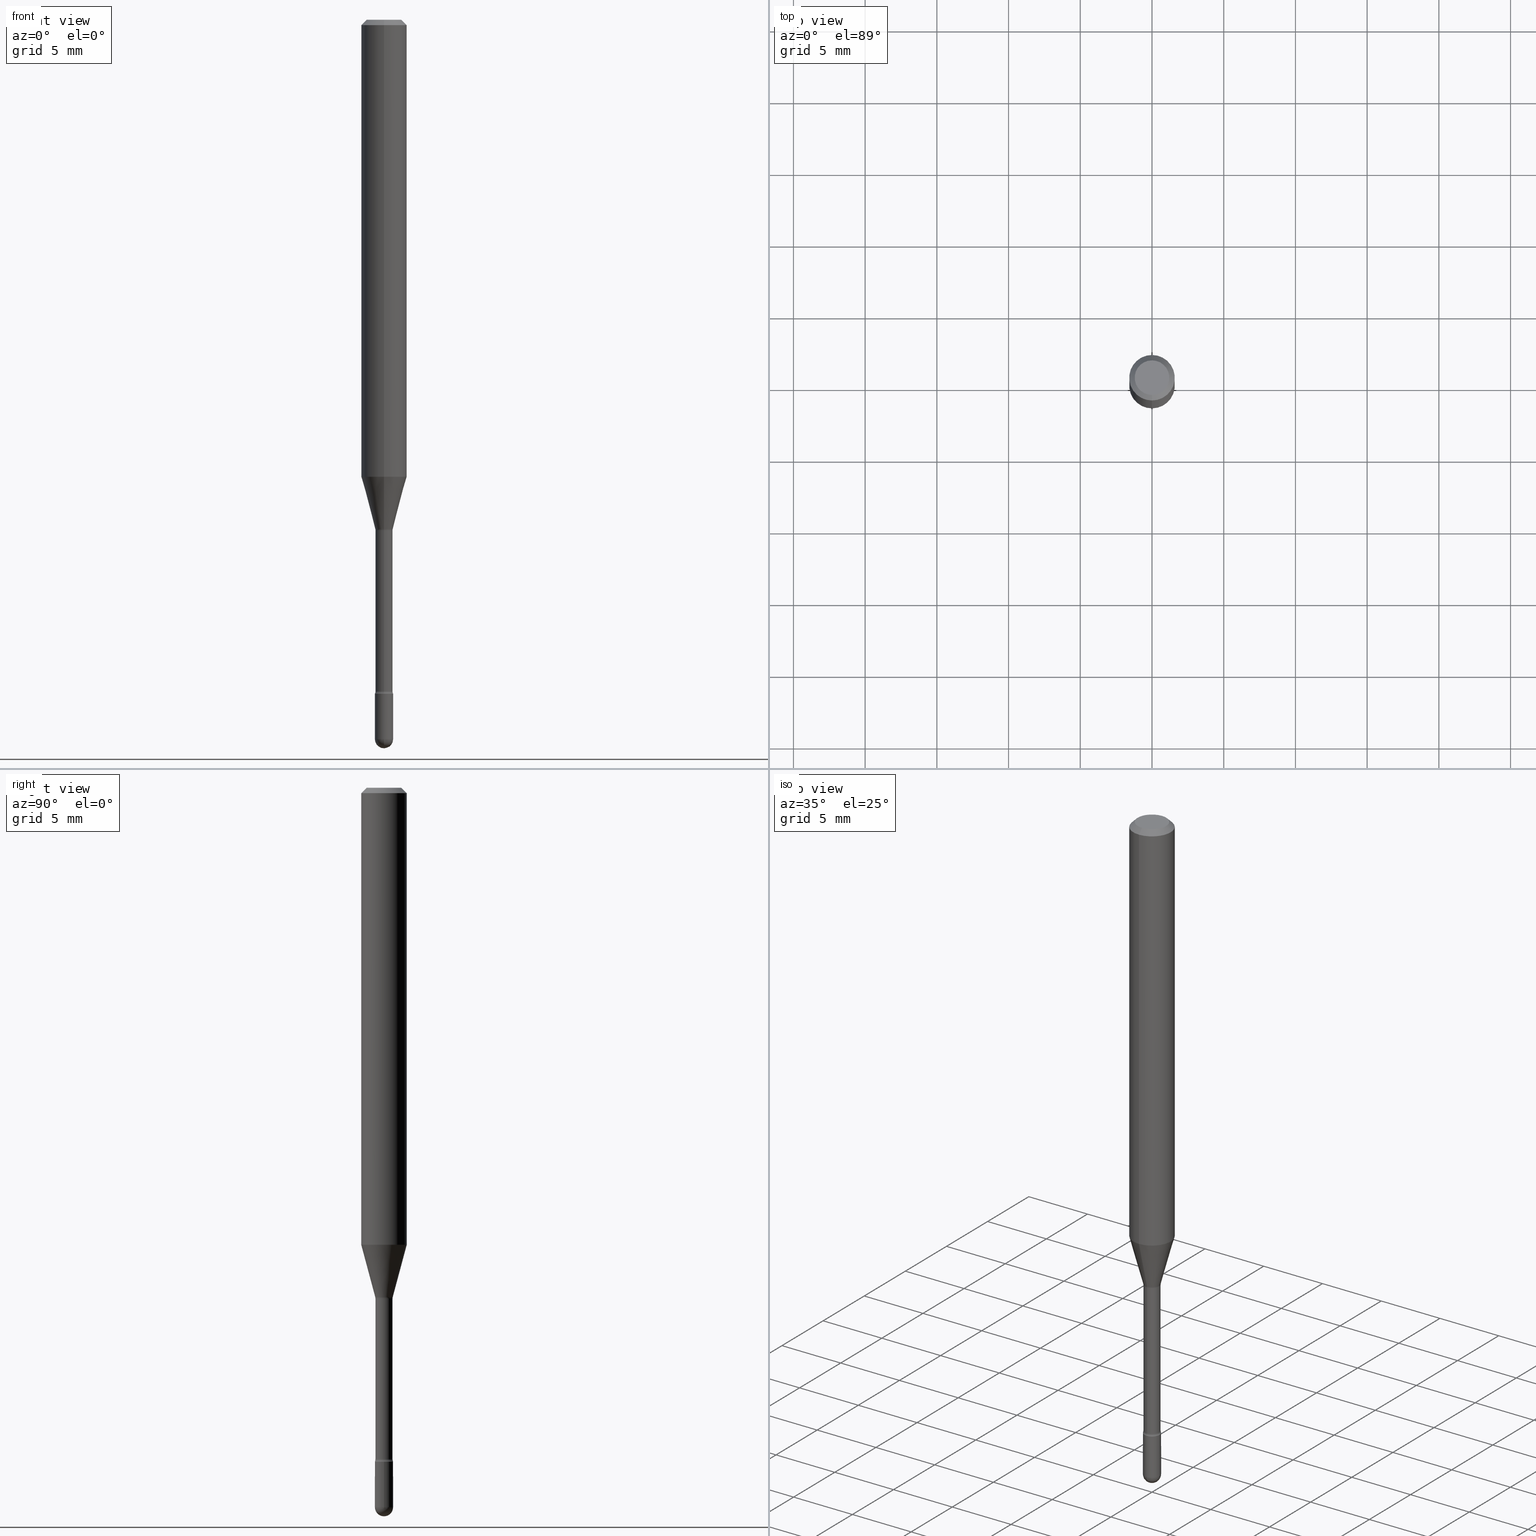
[diagram: canonical four-view strip — front | top / right | iso, engineering-drawing reading convention]
A machine part, canonical four-view strip (front | top / right | iso — engineering-drawing reading convention). The complete STEP part file that produces these views, byte-faithful:
ISO-10303-21;
HEADER;
FILE_DESCRIPTION (( 'STEP AP203' ),
    '1' );
FILE_NAME ('09318.STEP',
    '2024-04-09T22:26:42',
    ( '' ),
    ( '' ),
    'SwSTEP 2.0',
    'SolidWorks 2023',
    '' );
FILE_SCHEMA (( 'CONFIG_CONTROL_DESIGN' ));
ENDSEC;

DATA;
#1 = EDGE_CURVE ( 'NONE', #530, #293, #517, .T. ) ;
#2 = DIRECTION ( 'NONE',  ( 1.000000000000000000, -6.982962677686254878E-15, 0.000000000000000000 ) ) ;
#3 = CARTESIAN_POINT ( 'NONE',  ( -0.02500000000000000486, 1.776356839400250810E-16, -1.229733772563726656E-30 ) ) ;
#4 = EDGE_CURVE ( 'NONE', #227, #449, #503, .T. ) ;
#5 = DIRECTION ( 'NONE',  ( -2.445515165331157393E-29, 3.491414949907445282E-15, 1.000000000000000000 ) ) ;
#6 = CARTESIAN_POINT ( 'NONE',  ( 0.000000000000000000, 0.000000000000000000, 0.000000000000000000 ) ) ;
#7 = DIRECTION ( 'NONE',  ( -2.445515165331157393E-29, 3.491414949907445282E-15, 1.000000000000000000 ) ) ;
#8 = ORIENTED_EDGE ( 'NONE', *, *, #424, .F. ) ;
#9 = CARTESIAN_POINT ( 'NONE',  ( 2.735589532676728342E-16, 0.03849999999999511452, -1.401974787463811101 ) ) ;
#10 = LINE ( 'NONE', #3, #28 ) ;
#11 = ADVANCED_FACE ( 'NONE', ( #17 ), #188, .T. ) ;
#12 = DIRECTION ( 'NONE',  ( -2.445515165331157393E-29, 3.491414949907445282E-15, 1.000000000000000000 ) ) ;
#13 = ADVANCED_FACE ( 'NONE', ( #434 ), #301, .T. ) ;
#14 = EDGE_LOOP ( 'NONE', ( #411, #369, #456, #69 ) ) ;
#15 = DIRECTION ( 'NONE',  ( -6.982962677686265133E-15, -1.000000000000000000, 0.000000000000000000 ) ) ;
#16 = AXIS2_PLACEMENT_3D ( 'NONE', #351, #48, #305 ) ;
#17 = FACE_OUTER_BOUND ( 'NONE', #251, .T. ) ;
#18 = LINE ( 'NONE', #96, #38 ) ;
#19 = LINE ( 'NONE', #102, #176 ) ;
#20 = ORIENTED_EDGE ( 'NONE', *, *, #340, .T. ) ;
#21 = VERTEX_POINT ( 'NONE', #392 ) ;
#22 = PERSON_AND_ORGANIZATION ( #67, #127 ) ;
#23 = CARTESIAN_POINT ( 'NONE',  ( 4.508213425656779262E-29, -6.436289569923853216E-15, -1.843461651584689109 ) ) ;
#24 = EDGE_LOOP ( 'NONE', ( #359, #112, #499, #128 ) ) ;
#25 = EDGE_CURVE ( 'NONE', #219, #252, #10, .T. ) ;
#26 = DIRECTION ( 'NONE',  ( -2.445515165331157393E-29, 3.491414949907445282E-15, 1.000000000000000000 ) ) ;
#27 = UNCERTAINTY_MEASURE_WITH_UNIT (LENGTH_MEASURE( 1.000000000000000082E-05 ), #111, 'distance_accuracy_value', 'NONE');
#28 = VECTOR ( 'NONE', #83, 39.37007874015748143 ) ;
#29 = AXIS2_PLACEMENT_3D ( 'NONE', #455, #545, #257 ) ;
#30 = DIRECTION ( 'NONE',  ( -2.445515165331157393E-29, 3.491414949907444887E-15, 1.000000000000000000 ) ) ;
#31 = DIRECTION ( 'NONE',  ( 1.839019923739601104E-15, 0.2588190451025250693, 0.9659258262890670910 ) ) ;
#32 = PRODUCT_RELATED_PRODUCT_CATEGORY ( 'detail', '', ( #323 ) ) ;
#33 = CARTESIAN_POINT ( 'NONE',  ( 4.829800892215644891E-29, -6.895675644215213620E-15, -1.975000000000000089 ) ) ;
#34 = ADVANCED_FACE ( 'NONE', ( #132 ), #390, .T. ) ;
#35 = CARTESIAN_POINT ( 'NONE',  ( 1.745740669422019040E-16, 0.02499999999999354475, -1.849999999999999867 ) ) ;
#36 = SECURITY_CLASSIFICATION_LEVEL ( 'unclassified' ) ;
#37 = DIRECTION ( 'NONE',  ( -2.445515165331157393E-29, 3.491414949907445282E-15, 1.000000000000000000 ) ) ;
#38 = VECTOR ( 'NONE', #537, 39.37007874015748143 ) ;
#39 = ORIENTED_EDGE ( 'NONE', *, *, #292, .F. ) ;
#40 = DIRECTION ( 'NONE',  ( -6.982962677686265922E-15, -1.000000000000000000, 3.491414949907445676E-15 ) ) ;
#41 = FACE_OUTER_BOUND ( 'NONE', #249, .T. ) ;
#42 = APPROVAL_DATE_TIME ( #386, #529 ) ;
#43 = CARTESIAN_POINT ( 'NONE',  ( 3.668272747996756163E-31, -5.237122424861196839E-17, -0.01500000000000008271 ) ) ;
#44 = DIRECTION ( 'NONE',  ( -2.445515165331157113E-29, 3.491414949907444887E-15, 1.000000000000000000 ) ) ;
#45 = DIRECTION ( 'NONE',  ( -2.445515165331157393E-29, 3.491414949907445282E-15, 1.000000000000000000 ) ) ;
#46 = CARTESIAN_POINT ( 'NONE',  ( 0.02500000000000000486, -1.745740669421567171E-16, 1.219044193948984299E-30 ) ) ;
#47 = CIRCLE ( 'NONE', #57, 0.02500000000000000486 ) ;
#48 = DIRECTION ( 'NONE',  ( -2.445515165331157393E-29, 3.491414949907445282E-15, 1.000000000000000000 ) ) ;
#49 = AXIS2_PLACEMENT_3D ( 'NONE', #23, #505, #543 ) ;
#50 = CARTESIAN_POINT ( 'NONE',  ( 3.428550604154676765E-29, -4.894875732344463404E-15, -1.401974787463811101 ) ) ;
#51 = ORIENTED_EDGE ( 'NONE', *, *, #506, .T. ) ;
#52 = DIRECTION ( 'NONE',  ( -2.445468806185136597E-29, 3.491481338843145583E-15, 1.000000000000000000 ) ) ;
#53 = ORIENTED_EDGE ( 'NONE', *, *, #334, .F. ) ;
#54 = EDGE_LOOP ( 'NONE', ( #395, #59 ) ) ;
#55 = CARTESIAN_POINT ( 'NONE',  ( 2.735589532676839768E-16, 0.03849999999999361572, -1.843461651584689109 ) ) ;
#56 = CARTESIAN_POINT ( 'NONE',  ( -1.776356839399765414E-16, -0.02500000000000686742, -1.975000000000000089 ) ) ;
#57 = AXIS2_PLACEMENT_3D ( 'NONE', #535, #228, #140 ) ;
#58 = AXIS2_PLACEMENT_3D ( 'NONE', #290, #26, #465 ) ;
#59 = ORIENTED_EDGE ( 'NONE', *, *, #424, .T. ) ;
#60 = ADVANCED_FACE ( 'NONE', ( #546 ), #336, .F. ) ;
#61 = CARTESIAN_POINT ( 'NONE',  ( 4.440892098500930859E-16, 0.06249999999999559380, -1.254450018504814635 ) ) ;
#62 = ORIENTED_EDGE ( 'NONE', *, *, #463, .T. ) ;
#63 = ORIENTED_EDGE ( 'NONE', *, *, #500, .T. ) ;
#64 = DIRECTION ( 'NONE',  ( -4.851104656540964275E-15, -0.7071067811865500152, -0.7071067811865450192 ) ) ;
#65 = ORIENTED_EDGE ( 'NONE', *, *, #380, .F. ) ;
#66 = DIRECTION ( 'NONE',  ( 1.000000000000000000, 0.000000000000000000, 0.000000000000000000 ) ) ;
#67 = PERSON ( 'UNSPECIFIED', 'UNSPECIFIED', 'UNSPECIFIED', ('UNSPECIFIED'), ('UNSPECIFIED'), ('UNSPECIFIED') ) ;
#68 = VECTOR ( 'NONE', #81, 39.37007874015748143 ) ;
#69 = ORIENTED_EDGE ( 'NONE', *, *, #299, .T. ) ;
#70 = ORIENTED_EDGE ( 'NONE', *, *, #25, .F. ) ;
#71 = VERTEX_POINT ( 'NONE', #197 ) ;
#72 = APPLICATION_CONTEXT ( 'configuration controlled 3d designs of mechanical parts and assemblies' ) ;
#73 = DIRECTION ( 'NONE',  ( 2.445515165331157393E-29, -3.491414949907445282E-15, -1.000000000000000000 ) ) ;
#74 = AXIS2_PLACEMENT_3D ( 'NONE', #175, #429, #276 ) ;
#75 = CIRCLE ( 'NONE', #139, 0.02500000000000000139 ) ;
#76 = ADVANCED_FACE ( 'NONE', ( #425 ), #267, .F. ) ;
#77 = EDGE_CURVE ( 'NONE', #401, #114, #522, .T. ) ;
#78 = EDGE_LOOP ( 'NONE', ( #306, #170, #539, #461 ) ) ;
#79 = CALENDAR_DATE ( 2024, 9, 4 ) ;
#80 = SPHERICAL_SURFACE ( 'NONE', #272, 0.02499999999999993894 ) ;
#81 = DIRECTION ( 'NONE',  ( -2.445515165331157393E-29, 3.491414949907444887E-15, 1.000000000000000000 ) ) ;
#82 = AXIS2_PLACEMENT_3D ( 'NONE', #145, #322, #482 ) ;
#83 = DIRECTION ( 'NONE',  ( -2.445468806185136877E-29, 3.491481338843145188E-15, 1.000000000000000000 ) ) ;
#84 = AXIS2_PLACEMENT_3D ( 'NONE', #55, #237, #240 ) ;
#85 = AXIS2_PLACEMENT_3D ( 'NONE', #115, #164, #254 ) ;
#86 = VERTEX_POINT ( 'NONE', #131 ) ;
#87 = APPROVAL_DATE_TIME ( #559, #106 ) ;
#88 = DIRECTION ( 'NONE',  ( -2.445515165331157393E-29, 3.491414949907444887E-15, 1.000000000000000000 ) ) ;
#89 = EDGE_CURVE ( 'NONE', #444, #135, #231, .T. ) ;
#90 = ORIENTED_EDGE ( 'NONE', *, *, #213, .F. ) ;
#91 = CARTESIAN_POINT ( 'NONE',  ( 4.829800892215644891E-29, -6.895675644215213620E-15, -1.975000000000000089 ) ) ;
#92 = PERSON_AND_ORGANIZATION ( #67, #127 ) ;
#93 = EDGE_CURVE ( 'NONE', #159, #449, #388, .T. ) ;
#94 = FACE_OUTER_BOUND ( 'NONE', #484, .T. ) ;
#95 = AXIS2_PLACEMENT_3D ( 'NONE', #266, #520, #376 ) ;
#96 = CARTESIAN_POINT ( 'NONE',  ( -1.676687031750395996E-16, -0.02401111260566886341, -1.398092501787273179 ) ) ;
#97 = ORIENTED_EDGE ( 'NONE', *, *, #108, .T. ) ;
#98 = DIRECTION ( 'NONE',  ( -6.982962677686266711E-15, -1.000000000000000000, 0.000000000000000000 ) ) ;
#99 = CARTESIAN_POINT ( 'NONE',  ( -2.688440630908869963E-16, -0.03850000000000489836, -1.401974787463811101 ) ) ;
#100 = EDGE_CURVE ( 'NONE', #368, #159, #190, .T. ) ;
#101 = CLOSED_SHELL ( 'NONE', ( #34, #250, #286, #143, #451 ) ) ;
#102 = CARTESIAN_POINT ( 'NONE',  ( 4.364351673553919652E-16, 0.06249999999999995143, -0.01500000000000030129 ) ) ;
#103 = AXIS2_PLACEMENT_3D ( 'NONE', #248, #333, #291 ) ;
#104 = ORIENTED_EDGE ( 'NONE', *, *, #556, .T. ) ;
#105 = CARTESIAN_POINT ( 'NONE',  ( 4.524117291442502256E-29, -6.459240476859818795E-15, -1.849999999999999867 ) ) ;
#106 = APPROVAL ( #259, 'UNSPECIFIED' ) ;
#107 = DIRECTION ( 'NONE',  ( 0.000000000000000000, 0.000000000000000000, 1.000000000000000000 ) ) ;
#108 = EDGE_CURVE ( 'NONE', #449, #159, #432, .T. ) ;
#109 = PERSON_AND_ORGANIZATION ( #67, #127 ) ;
#110 = SECURITY_CLASSIFICATION ( '', '', #36 ) ;
#111 =( CONVERSION_BASED_UNIT ( 'INCH', #339 ) LENGTH_UNIT ( ) NAMED_UNIT ( #363 ) );
#112 = ORIENTED_EDGE ( 'NONE', *, *, #442, .T. ) ;
#113 = CARTESIAN_POINT ( 'NONE',  ( 3.668272747996756163E-31, -5.237122424861196839E-17, -0.01500000000000008271 ) ) ;
#114 = VERTEX_POINT ( 'NONE', #187 ) ;
#115 = CARTESIAN_POINT ( 'NONE',  ( 3.419056415656554826E-29, -4.881321062093587157E-15, -1.398092501787273179 ) ) ;
#116 = AXIS2_PLACEMENT_3D ( 'NONE', #50, #528, #235 ) ;
#117 = ADVANCED_FACE ( 'NONE', ( #538 ), #509, .T. ) ;
#118 = AXIS2_PLACEMENT_3D ( 'NONE', #439, #194, #498 ) ;
#119 = CARTESIAN_POINT ( 'NONE',  ( 3.668272747996756163E-31, -5.237122424861196839E-17, -0.01500000000000008271 ) ) ;
#120 = APPROVAL_ROLE ( '' ) ;
#121 = ADVANCED_FACE ( 'NONE', ( #123 ), #156, .T. ) ;
#122 = DIRECTION ( 'NONE',  ( -6.982962677686265922E-15, -1.000000000000000000, 4.370956789862821150E-15 ) ) ;
#123 = FACE_OUTER_BOUND ( 'NONE', #283, .T. ) ;
#124 = ORIENTED_EDGE ( 'NONE', *, *, #500, .F. ) ;
#125 = CARTESIAN_POINT ( 'NONE',  ( 3.067776544403474457E-29, -4.379805548519381130E-15, -1.254450018504814413 ) ) ;
#126 = CIRCLE ( 'NONE', #533, 0.04749999999999999362 ) ;
#127 = ORGANIZATION ( 'UNSPECIFIED', 'UNSPECIFIED', '' ) ;
#128 = ORIENTED_EDGE ( 'NONE', *, *, #367, .F. ) ;
#129 = APPROVAL_ROLE ( '' ) ;
#130 = CARTESIAN_POINT ( 'NONE',  ( -0.02500000000000000486, -6.499822376597491792E-15, -1.975000000000000089 ) ) ;
#131 = CARTESIAN_POINT ( 'NONE',  ( -4.364351673553610517E-16, -0.06250000000000439926, -1.254450018504814190 ) ) ;
#132 = FACE_OUTER_BOUND ( 'NONE', #496, .T. ) ;
#133 = COORDINATED_UNIVERSAL_TIME_OFFSET ( 5, 0, .BEHIND. ) ;
#134 = DIRECTION ( 'NONE',  ( 2.445515165331157393E-29, -3.491414949907445282E-15, -1.000000000000000000 ) ) ;
#135 = VERTEX_POINT ( 'NONE', #260 ) ;
#136 = PLANE ( 'NONE',  #222 ) ;
#137 = DIRECTION ( 'NONE',  ( -2.445515165331157393E-29, 3.491414949907445282E-15, 1.000000000000000000 ) ) ;
#138 = ORIENTED_EDGE ( 'NONE', *, *, #181, .F. ) ;
#139 = AXIS2_PLACEMENT_3D ( 'NONE', #105, #277, #284 ) ;
#140 = DIRECTION ( 'NONE',  ( 1.000000000000000000, -6.982962677686253300E-15, 0.000000000000000000 ) ) ;
#141 = CARTESIAN_POINT ( 'NONE',  ( 4.508213425656779262E-29, -6.436289569923853216E-15, -1.843461651584689109 ) ) ;
#142 = PRODUCT_DEFINITION_SHAPE ( 'NONE', 'NONE',  #379 ) ;
#143 = ADVANCED_FACE ( 'NONE', ( #94 ), #418, .T. ) ;
#144 = FACE_OUTER_BOUND ( 'NONE', #24, .T. ) ;
#145 = CARTESIAN_POINT ( 'NONE',  ( 3.428485609800787057E-29, -4.894968807958481776E-15, -1.401974787463811101 ) ) ;
#146 = DIRECTION ( 'NONE',  ( 2.445515165331157113E-29, -3.491414949907444887E-15, -1.000000000000000000 ) ) ;
#147 = AXIS2_PLACEMENT_3D ( 'NONE', #91, #352, #381 ) ;
#148 = ORIENTED_EDGE ( 'NONE', *, *, #420, .F. ) ;
#149 = CC_DESIGN_PERSON_AND_ORGANIZATION_ASSIGNMENT ( #210, #512, ( #342 ) ) ;
#150 = ORIENTED_EDGE ( 'NONE', *, *, #463, .F. ) ;
#151 =( NAMED_UNIT ( * ) SI_UNIT ( $, .STERADIAN. ) SOLID_ANGLE_UNIT ( ) );
#152 = EDGE_CURVE ( 'NONE', #21, #436, #466, .T. ) ;
#153 = ORIENTED_EDGE ( 'NONE', *, *, #340, .F. ) ;
#154 = CARTESIAN_POINT ( 'NONE',  ( -1.169113584055446105E-44, 1.669184350826100908E-30, 4.780733988912460139E-16 ) ) ;
#155 = FACE_OUTER_BOUND ( 'NONE', #394, .T. ) ;
#156 = CYLINDRICAL_SURFACE ( 'NONE', #244, 0.02350000000000003475 ) ;
#157 = DIRECTION ( 'NONE',  ( 6.982962677686265922E-15, 1.000000000000000000, 0.000000000000000000 ) ) ;
#158 = VECTOR ( 'NONE', #393, 39.37007874015748143 ) ;
#159 = VERTEX_POINT ( 'NONE', #303 ) ;
#160 = CONICAL_SURFACE ( 'NONE', #328, 0.02401111260566398189, 0.2617993877991502960 ) ;
#161 = LOCAL_TIME ( 18, 26, 42.00000000000000000, #211 ) ;
#162 = FACE_OUTER_BOUND ( 'NONE', #448, .T. ) ;
#163 = ADVANCED_FACE ( 'NONE', ( #271 ), #383, .T. ) ;
#164 = DIRECTION ( 'NONE',  ( -2.445515165331157393E-29, 3.491414949907445282E-15, 1.000000000000000000 ) ) ;
#165 = AXIS2_PLACEMENT_3D ( 'NONE', #99, #191, #396 ) ;
#166 = ORIENTED_EDGE ( 'NONE', *, *, #77, .F. ) ;
#167 = PERSON_AND_ORGANIZATION ( #67, #127 ) ;
#168 = DIRECTION ( 'NONE',  ( -2.445515165331157393E-29, 3.491414949907445282E-15, 1.000000000000000000 ) ) ;
#169 = DIRECTION ( 'NONE',  ( 1.000000000000000000, -6.982962677686267499E-15, 4.876176775795936353E-29 ) ) ;
#170 = ORIENTED_EDGE ( 'NONE', *, *, #544, .F. ) ;
#171 = EDGE_LOOP ( 'NONE', ( #70, #51, #360, #178, #247 ) ) ;
#172 = CARTESIAN_POINT ( 'NONE',  ( 4.829800892215644891E-29, -6.895675644215213620E-15, -1.975000000000000089 ) ) ;
#173 = CALENDAR_DATE ( 2024, 9, 4 ) ;
#174 = FACE_OUTER_BOUND ( 'NONE', #287, .T. ) ;
#175 = CARTESIAN_POINT ( 'NONE',  ( -1.169113584055446105E-44, 1.669184350826100908E-30, 4.780733988912460139E-16 ) ) ;
#176 = VECTOR ( 'NONE', #282, 39.37007874015748143 ) ;
#177 = MANIFOLD_SOLID_BREP ( 'Body-Move/Copy2[2]', #348 ) ;
#178 = ORIENTED_EDGE ( 'NONE', *, *, #89, .T. ) ;
#179 = APPROVAL_STATUS ( 'not_yet_approved' ) ;
#180 = DIRECTION ( 'NONE',  ( -6.982962677686265922E-15, -1.000000000000000000, 3.491414949907445676E-15 ) ) ;
#181 = EDGE_CURVE ( 'NONE', #86, #401, #302, .T. ) ;
#182 = CARTESIAN_POINT ( 'NONE',  ( 1.669775429036687557E-16, 0.02349999999999509773, -1.401974787463811101 ) ) ;
#183 = AXIS2_PLACEMENT_3D ( 'NONE', #230, #52, #492 ) ;
#184 = ADVANCED_FACE ( 'NONE', ( #479 ), #457, .F. ) ;
#185 = CIRCLE ( 'NONE', #49, 0.02350000000000007291 ) ;
#186 = DIRECTION ( 'NONE',  ( -2.445468806185136597E-29, 3.491481338843145583E-15, 1.000000000000000000 ) ) ;
#187 = CARTESIAN_POINT ( 'NONE',  ( 4.440892098500934804E-16, 0.06249999999999995143, -0.01500000000000030129 ) ) ;
#188 = CYLINDRICAL_SURFACE ( 'NONE', #74, 0.02350000000000003475 ) ;
#189 = EDGE_CURVE ( 'NONE', #460, #114, #519, .T. ) ;
#190 = LINE ( 'NONE', #404, #158 ) ;
#191 = DIRECTION ( 'NONE',  ( -1.000000000000000000, 6.982962677686265922E-15, -4.883557194083112901E-29 ) ) ;
#192 = ORIENTED_EDGE ( 'NONE', *, *, #454, .T. ) ;
#193 = ORIENTED_EDGE ( 'NONE', *, *, #100, .F. ) ;
#194 = DIRECTION ( 'NONE',  ( -2.445515165331157393E-29, 3.491414949907445282E-15, 1.000000000000000000 ) ) ;
#195 = AXIS2_PLACEMENT_3D ( 'NONE', #154, #357, #40 ) ;
#196 = DIRECTION ( 'NONE',  ( -6.982962677686265922E-15, -1.000000000000000000, 3.491414949907444887E-15 ) ) ;
#197 = CARTESIAN_POINT ( 'NONE',  ( 1.723066134218696351E-16, 0.02349999999999363709, -1.843461651584689109 ) ) ;
#198 = AXIS2_PLACEMENT_3D ( 'NONE', #43, #7, #218 ) ;
#199 = EDGE_CURVE ( 'NONE', #401, #86, #511, .T. ) ;
#200 = LOCAL_TIME ( 18, 26, 42.00000000000000000, #480 ) ;
#201 = APPLICATION_PROTOCOL_DEFINITION ( 'international standard', 'config_control_design', 1994, #72 ) ;
#202 = ORIENTED_EDGE ( 'NONE', *, *, #199, .F. ) ;
#203 = VERTEX_POINT ( 'NONE', #270 ) ;
#204 = LINE ( 'NONE', #415, #521 ) ;
#205 = ORIENTED_EDGE ( 'NONE', *, *, #420, .T. ) ;
#206 =( NAMED_UNIT ( * ) PLANE_ANGLE_UNIT ( ) SI_UNIT ( $, .RADIAN. ) );
#207 = AXIS2_PLACEMENT_3D ( 'NONE', #113, #73, #547 ) ;
#208 = APPROVAL_PERSON_ORGANIZATION ( #92, #529, #120 ) ;
#209 = APPLICATION_CONTEXT ( 'configuration controlled 3d designs of mechanical parts and assemblies' ) ;
#210 = PERSON_AND_ORGANIZATION ( #67, #127 ) ;
#211 = COORDINATED_UNIVERSAL_TIME_OFFSET ( 5, 0, .BEHIND. ) ;
#212 = DIRECTION ( 'NONE',  ( -6.982962677686265922E-15, -1.000000000000000000, 3.491414949907445676E-15 ) ) ;
#213 = EDGE_CURVE ( 'NONE', #71, #449, #344, .T. ) ;
#214 = AXIS2_PLACEMENT_3D ( 'NONE', #428, #387, #2 ) ;
#215 = CIRCLE ( 'NONE', #234, 0.02500000000000000139 ) ;
#216 = ORIENTED_EDGE ( 'NONE', *, *, #199, .T. ) ;
#217 = ORIENTED_EDGE ( 'NONE', *, *, #556, .F. ) ;
#218 = DIRECTION ( 'NONE',  ( -6.982962677686265922E-15, -1.000000000000000000, 3.483106191921935554E-15 ) ) ;
#219 = VERTEX_POINT ( 'NONE', #130 ) ;
#220 = CALENDAR_DATE ( 2024, 9, 4 ) ;
#221 = CARTESIAN_POINT ( 'NONE',  ( 3.428485609800787057E-29, -4.894968807958481776E-15, -1.401974787463811101 ) ) ;
#222 = AXIS2_PLACEMENT_3D ( 'NONE', #326, #146, #329 ) ;
#223 = EDGE_CURVE ( 'NONE', #252, #135, #337, .T. ) ;
#224 = ORIENTED_EDGE ( 'NONE', *, *, #440, .T. ) ;
#225 = DIRECTION ( 'NONE',  ( -1.000000000000000000, 6.982962677686266711E-15, -4.883557194083112901E-29 ) ) ;
#226 = ORIENTED_EDGE ( 'NONE', *, *, #181, .T. ) ;
#227 = VERTEX_POINT ( 'NONE', #471 ) ;
#228 = DIRECTION ( 'NONE',  ( -2.445468806185136597E-29, 3.491481338843145583E-15, 1.000000000000000000 ) ) ;
#229 = EDGE_CURVE ( 'NONE', #478, #238, #126, .T. ) ;
#230 = CARTESIAN_POINT ( 'NONE',  ( 0.000000000000000000, 0.000000000000000000, 0.000000000000000000 ) ) ;
#231 = LINE ( 'NONE', #46, #398 ) ;
#232 = DIRECTION ( 'NONE',  ( -6.982962677686265922E-15, -1.000000000000000000, 0.000000000000000000 ) ) ;
#233 = AXIS2_PLACEMENT_3D ( 'NONE', #327, #137, #232 ) ;
#234 = AXIS2_PLACEMENT_3D ( 'NONE', #242, #527, #441 ) ;
#235 = DIRECTION ( 'NONE',  ( -6.982962677686265922E-15, -1.000000000000000000, 0.000000000000000000 ) ) ;
#236 = AXIS2_PLACEMENT_3D ( 'NONE', #33, #370, #157 ) ;
#237 = DIRECTION ( 'NONE',  ( 1.000000000000000000, -7.105427357601001070E-15, 4.926314695512106152E-29 ) ) ;
#238 = VERTEX_POINT ( 'NONE', #422 ) ;
#239 = CC_DESIGN_DATE_AND_TIME_ASSIGNMENT ( #350, #417, ( #379 ) ) ;
#240 = DIRECTION ( 'NONE',  ( 7.105427357600997914E-15, 1.000000000000000000, 0.000000000000000000 ) ) ;
#241 = EDGE_LOOP ( 'NONE', ( #124, #295, #97, #245 ) ) ;
#242 = CARTESIAN_POINT ( 'NONE',  ( 4.524203055862640939E-29, -6.459117657328772962E-15, -1.849999999999999867 ) ) ;
#243 = ORIENTED_EDGE ( 'NONE', *, *, #544, .T. ) ;
#244 = AXIS2_PLACEMENT_3D ( 'NONE', #403, #562, #347 ) ;
#245 = ORIENTED_EDGE ( 'NONE', *, *, #382, .F. ) ;
#246 = ORIENTED_EDGE ( 'NONE', *, *, #435, .F. ) ;
#247 = ORIENTED_EDGE ( 'NONE', *, *, #223, .F. ) ;
#248 = CARTESIAN_POINT ( 'NONE',  ( 3.419056415656554826E-29, -4.881321062093587157E-15, -1.398092501787273179 ) ) ;
#249 = EDGE_LOOP ( 'NONE', ( #217, #274, #419, #153 ) ) ;
#250 = ADVANCED_FACE ( 'NONE', ( #41 ), #80, .T. ) ;
#251 = EDGE_LOOP ( 'NONE', ( #224, #258, #385, #193 ) ) ;
#252 = VERTEX_POINT ( 'NONE', #315 ) ;
#253 =( LENGTH_UNIT ( ) NAMED_UNIT ( * ) SI_UNIT ( $, .METRE. ) );
#254 = DIRECTION ( 'NONE',  ( -6.982962677686265133E-15, -1.000000000000000000, 0.000000000000000000 ) ) ;
#255 = AXIS2_PLACEMENT_3D ( 'NONE', #516, #481, #308 ) ;
#256 = LOCAL_TIME ( 18, 26, 42.00000000000000000, #312 ) ;
#257 = DIRECTION ( 'NONE',  ( -6.982962677686265922E-15, -1.000000000000000000, 3.491414949907444887E-15 ) ) ;
#258 = ORIENTED_EDGE ( 'NONE', *, *, #213, .T. ) ;
#259 = APPROVAL_STATUS ( 'not_yet_approved' ) ;
#260 = CARTESIAN_POINT ( 'NONE',  ( 0.02500000000000000139, -6.633814543801975463E-15, -1.849999999999999867 ) ) ;
#261 = CARTESIAN_POINT ( 'NONE',  ( 2.023889967611963003E-45, -2.888834961387493814E-31, -8.275018554599114766E-17 ) ) ;
#262 = AXIS2_PLACEMENT_3D ( 'NONE', #489, #134, #316 ) ;
#263 = AXIS2_PLACEMENT_3D ( 'NONE', #119, #168, #431 ) ;
#264 = CC_DESIGN_PERSON_AND_ORGANIZATION_ASSIGNMENT ( #514, #470, ( #342 ) ) ;
#265 = CALENDAR_DATE ( 2024, 9, 4 ) ;
#266 = CARTESIAN_POINT ( 'NONE',  ( 4.829800892215644891E-29, -6.895675644215213620E-15, -1.975000000000000089 ) ) ;
#267 = PLANE ( 'NONE',  #413 ) ;
#268 = ORIENTED_EDGE ( 'NONE', *, *, #152, .F. ) ;
#269 = DATE_AND_TIME ( #173, #256 ) ;
#270 = CARTESIAN_POINT ( 'NONE',  ( -1.676687031750395996E-16, -0.02401111260566886341, -1.398092501787273179 ) ) ;
#271 = FACE_OUTER_BOUND ( 'NONE', #373, .T. ) ;
#272 = AXIS2_PLACEMENT_3D ( 'NONE', #172, #225, #524 ) ;
#273 = CC_DESIGN_APPROVAL ( #529, ( #110 ) ) ;
#274 = ORIENTED_EDGE ( 'NONE', *, *, #152, .T. ) ;
#275 = CARTESIAN_POINT ( 'NONE',  ( -1.640996229255826813E-16, -0.02350000000000651221, -1.843461651584689109 ) ) ;
#276 = DIRECTION ( 'NONE',  ( -6.982962677686267499E-15, -1.000000000000000000, 3.491414949907446070E-15 ) ) ;
#277 = DIRECTION ( 'NONE',  ( -2.445468806185136597E-29, 3.491481338843145583E-15, 1.000000000000000000 ) ) ;
#278 = ORIENTED_EDGE ( 'NONE', *, *, #189, .F. ) ;
#279 = CARTESIAN_POINT ( 'NONE',  ( -4.287811248607203282E-16, -0.06250000000000005551, -0.01499999999999986587 ) ) ;
#280 = ORIENTED_EDGE ( 'NONE', *, *, #1, .F. ) ;
#281 = TOROIDAL_SURFACE ( 'NONE', #29, 0.03850000000000005501, 0.01499999999999998036 ) ;
#282 = DIRECTION ( 'NONE',  ( 4.937700262164548042E-15, 0.7071067811865451302, -0.7071067811865499042 ) ) ;
#283 = EDGE_LOOP ( 'NONE', ( #90, #409, #371, #332 ) ) ;
#284 = DIRECTION ( 'NONE',  ( 1.000000000000000000, -6.982962677686254878E-15, 0.000000000000000000 ) ) ;
#285 = ORIENTED_EDGE ( 'NONE', *, *, #25, .T. ) ;
#286 = ADVANCED_FACE ( 'NONE', ( #564 ), #345, .T. ) ;
#287 = EDGE_LOOP ( 'NONE', ( #536, #63, #507, #202 ) ) ;
#288 = FACE_OUTER_BOUND ( 'NONE', #501, .T. ) ;
#289 = TOROIDAL_SURFACE ( 'NONE', #364, 0.03850000000000005501, 0.01499999999999998036 ) ;
#290 = CARTESIAN_POINT ( 'NONE',  ( 3.419056415656554826E-29, -4.881321062093587157E-15, -1.398092501787273179 ) ) ;
#291 = DIRECTION ( 'NONE',  ( -6.982962677686265133E-15, -1.000000000000000000, 0.000000000000000000 ) ) ;
#292 = EDGE_CURVE ( 'NONE', #86, #460, #391, .T. ) ;
#293 = VERTEX_POINT ( 'NONE', #427 ) ;
#294 = MANIFOLD_SOLID_BREP ( 'Body-Move/Copy2[1]', #101 ) ;
#295 = ORIENTED_EDGE ( 'NONE', *, *, #4, .T. ) ;
#296 = MECHANICAL_CONTEXT ( 'NONE', #209, 'mechanical' ) ;
#297 = ORIENTED_EDGE ( 'NONE', *, *, #367, .T. ) ;
#298 = DESIGN_CONTEXT ( 'detailed design', #72, 'design' ) ;
#299 = EDGE_CURVE ( 'NONE', #114, #460, #443, .T. ) ;
#300 = DIRECTION ( 'NONE',  ( -2.445468806185136597E-29, 3.491481338843145583E-15, 1.000000000000000000 ) ) ;
#301 = CONICAL_SURFACE ( 'NONE', #262, 0.06250000000000000000, 0.7853981633974483900 ) ;
#302 = CIRCLE ( 'NONE', #309, 0.06250000000000000000 ) ;
#303 = CARTESIAN_POINT ( 'NONE',  ( -1.640996229255929365E-16, -0.02350000000000488851, -1.401974787463811101 ) ) ;
#304 = SHAPE_DEFINITION_REPRESENTATION ( #142, #311 ) ;
#305 = DIRECTION ( 'NONE',  ( -6.982962677686265922E-15, -1.000000000000000000, 4.370956789862821150E-15 ) ) ;
#306 = ORIENTED_EDGE ( 'NONE', *, *, #4, .F. ) ;
#307 = APPROVAL_STATUS ( 'not_yet_approved' ) ;
#308 = DIRECTION ( 'NONE',  ( 1.000000000000000000, -6.982962677686265922E-15, 4.876176775795935793E-29 ) ) ;
#309 = AXIS2_PLACEMENT_3D ( 'NONE', #125, #560, #122 ) ;
#310 = AXIS2_PLACEMENT_3D ( 'NONE', #502, #107, #66 ) ;
#311 = ADVANCED_BREP_SHAPE_REPRESENTATION ( '09318', ( #294, #177, #310 ), #513 ) ;
#312 = COORDINATED_UNIVERSAL_TIME_OFFSET ( 5, 0, .BEHIND. ) ;
#313 = CARTESIAN_POINT ( 'NONE',  ( -1.169113584055446105E-44, 1.669184350826100908E-30, 4.780733988912460139E-16 ) ) ;
#314 = PERSON_AND_ORGANIZATION_ROLE ( 'classification_officer' ) ;
#315 = CARTESIAN_POINT ( 'NONE',  ( -0.02500000000000000139, -6.499822376597491792E-15, -1.849999999999999867 ) ) ;
#316 = DIRECTION ( 'NONE',  ( 6.982962677686265922E-15, 1.000000000000000000, -3.483106191921935554E-15 ) ) ;
#317 = DIRECTION ( 'NONE',  ( -6.982962677686265133E-15, -1.000000000000000000, 0.000000000000000000 ) ) ;
#318 = CARTESIAN_POINT ( 'NONE',  ( 4.829800892215644891E-29, -6.895675644215213620E-15, -1.975000000000000089 ) ) ;
#319 = CIRCLE ( 'NONE', #407, 0.02500000000000000486 ) ;
#320 = ADVANCED_FACE ( 'NONE', ( #174 ), #160, .T. ) ;
#321 = DIRECTION ( 'NONE',  ( -2.445468806185136597E-29, 3.491481338843145583E-15, 1.000000000000000000 ) ) ;
#322 = DIRECTION ( 'NONE',  ( -2.445515165331157393E-29, 3.491414949907445282E-15, 1.000000000000000000 ) ) ;
#323 = PRODUCT ( '09318', '09318', '', ( #296 ) ) ;
#324 = VERTEX_POINT ( 'NONE', #353 ) ;
#325 = CARTESIAN_POINT ( 'NONE',  ( 3.419056415656554826E-29, -4.881321062093587157E-15, -1.398092501787273179 ) ) ;
#326 = CARTESIAN_POINT ( 'NONE',  ( 3.316907271900976096E-16, 0.04749999999999999362, 3.181939655202383107E-17 ) ) ;
#327 = CARTESIAN_POINT ( 'NONE',  ( 3.428550604154676765E-29, -4.894875732344463404E-15, -1.401974787463811101 ) ) ;
#328 = AXIS2_PLACEMENT_3D ( 'NONE', #325, #532, #15 ) ;
#329 = DIRECTION ( 'NONE',  ( 6.982962677686265922E-15, 1.000000000000000000, -3.491414949907444887E-15 ) ) ;
#330 = ORIENTED_EDGE ( 'NONE', *, *, #468, .F. ) ;
#331 = PERSON_AND_ORGANIZATION_ROLE ( 'design_owner' ) ;
#332 = ORIENTED_EDGE ( 'NONE', *, *, #108, .F. ) ;
#333 = DIRECTION ( 'NONE',  ( -2.445515165331157393E-29, 3.491414949907445282E-15, 1.000000000000000000 ) ) ;
#334 = EDGE_CURVE ( 'NONE', #436, #444, #319, .T. ) ;
#335 = CARTESIAN_POINT ( 'NONE',  ( 4.524203055862640939E-29, -6.459117657328772962E-15, -1.849999999999999867 ) ) ;
#336 = TOROIDAL_SURFACE ( 'NONE', #82, 0.03850000000000000644, 0.01500000000000002720 ) ;
#337 = CIRCLE ( 'NONE', #214, 0.02500000000000000139 ) ;
#338 = ORIENTED_EDGE ( 'NONE', *, *, #77, .T. ) ;
#339 = LENGTH_MEASURE_WITH_UNIT ( LENGTH_MEASURE( 0.02539999999999999897 ), #253 );
#340 = EDGE_CURVE ( 'NONE', #324, #219, #47, .T. ) ;
#341 = VECTOR ( 'NONE', #64, 39.37007874015748143 ) ;
#342 = PRODUCT_DEFINITION_FORMATION_WITH_SPECIFIED_SOURCE ( 'ANY', '', #323, .NOT_KNOWN. ) ;
#343 = APPROVAL_DATE_TIME ( #566, #355 ) ;
#344 = LINE ( 'NONE', #515, #68 ) ;
#345 = PLANE ( 'NONE',  #255 ) ;
#346 = ADVANCED_FACE ( 'NONE', ( #144 ), #289, .F. ) ;
#347 = DIRECTION ( 'NONE',  ( -6.982962677686267499E-15, -1.000000000000000000, 3.491414949907446070E-15 ) ) ;
#348 = CLOSED_SHELL ( 'NONE', ( #184, #11, #346, #483, #117, #525, #320, #163, #13, #361, #76, #491, #121, #60 ) ) ;
#349 = CIRCLE ( 'NONE', #103, 0.02401111260566398189 ) ;
#350 = DATE_AND_TIME ( #265, #459 ) ;
#351 = CARTESIAN_POINT ( 'NONE',  ( 3.067776544403474457E-29, -4.379805548519381130E-15, -1.254450018504814413 ) ) ;
#352 = DIRECTION ( 'NONE',  ( -1.000000000000000000, 6.982962677686266711E-15, -4.883557194083112901E-29 ) ) ;
#353 = CARTESIAN_POINT ( 'NONE',  ( 1.745740669422047143E-16, 0.02499999999999307984, -1.975000000000000089 ) ) ;
#354 = CIRCLE ( 'NONE', #118, 0.04749999999999999362 ) ;
#355 = APPROVAL ( #179, 'UNSPECIFIED' ) ;
#356 = DIRECTION ( 'NONE',  ( -6.982962677686262766E-15, -1.000000000000000000, 0.000000000000000000 ) ) ;
#357 = DIRECTION ( 'NONE',  ( -2.445515165331157393E-29, 3.491414949907445282E-15, 1.000000000000000000 ) ) ;
#358 = FACE_OUTER_BOUND ( 'NONE', #171, .T. ) ;
#359 = ORIENTED_EDGE ( 'NONE', *, *, #551, .F. ) ;
#360 = ORIENTED_EDGE ( 'NONE', *, *, #334, .T. ) ;
#361 = ADVANCED_FACE ( 'NONE', ( #540 ), #136, .F. ) ;
#362 = CYLINDRICAL_SURFACE ( 'NONE', #183, 0.02500000000000000486 ) ;
#363 = DIMENSIONAL_EXPONENTS ( 1.000000000000000000, 0.000000000000000000, 0.000000000000000000, 0.000000000000000000, 0.000000000000000000, 0.000000000000000000, 0.000000000000000000 ) ;
#364 = AXIS2_PLACEMENT_3D ( 'NONE', #447, #485, #196 ) ;
#365 = CIRCLE ( 'NONE', #236, 0.02499999999999993894 ) ;
#366 = CARTESIAN_POINT ( 'NONE',  ( 4.829800892215644891E-29, -6.895675644215213620E-15, -1.975000000000000089 ) ) ;
#367 = EDGE_CURVE ( 'NONE', #368, #293, #504, .T. ) ;
#368 = VERTEX_POINT ( 'NONE', #275 ) ;
#369 = ORIENTED_EDGE ( 'NONE', *, *, #229, .F. ) ;
#370 = DIRECTION ( 'NONE',  ( 1.000000000000000000, -6.982962677686265922E-15, 4.883557194083112340E-29 ) ) ;
#371 = ORIENTED_EDGE ( 'NONE', *, *, #100, .T. ) ;
#372 = AXIS2_PLACEMENT_3D ( 'NONE', #141, #12, #98 ) ;
#373 = EDGE_LOOP ( 'NONE', ( #166, #216, #553, #464 ) ) ;
#374 = DIRECTION ( 'NONE',  ( -6.982962677686265922E-15, -1.000000000000000000, 3.491414949907444887E-15 ) ) ;
#375 = PERSON_AND_ORGANIZATION_ROLE ( 'creator' ) ;
#376 = DIRECTION ( 'NONE',  ( -7.105427357601001070E-15, -1.000000000000000000, 0.000000000000000000 ) ) ;
#377 = VECTOR ( 'NONE', #88, 39.37007874015748143 ) ;
#378 = APPROVAL_PERSON_ORGANIZATION ( #109, #106, #426 ) ;
#379 = PRODUCT_DEFINITION ( 'UNKNOWN', '', #342, #298 ) ;
#380 = EDGE_CURVE ( 'NONE', #478, #114, #19, .T. ) ;
#381 = DIRECTION ( 'NONE',  ( 6.982962677686266711E-15, 1.000000000000000000, 0.000000000000000000 ) ) ;
#382 = EDGE_CURVE ( 'NONE', #203, #159, #542, .T. ) ;
#383 = CYLINDRICAL_SURFACE ( 'NONE', #558, 0.06250000000000000000 ) ;
#384 = DIRECTION ( 'NONE',  ( 1.000000000000000000, -7.105427357601001070E-15, 4.926314695512106152E-29 ) ) ;
#385 = ORIENTED_EDGE ( 'NONE', *, *, #93, .F. ) ;
#386 = DATE_AND_TIME ( #430, #497 ) ;
#387 = DIRECTION ( 'NONE',  ( -2.445468806185136597E-29, 3.491481338843145583E-15, 1.000000000000000000 ) ) ;
#388 = CIRCLE ( 'NONE', #116, 0.02349999999999999312 ) ;
#389 = AXIS2_PLACEMENT_3D ( 'NONE', #221, #37, #212 ) ;
#390 = CYLINDRICAL_SURFACE ( 'NONE', #541, 0.02500000000000000486 ) ;
#391 = LINE ( 'NONE', #475, #377 ) ;
#392 = CARTESIAN_POINT ( 'NONE',  ( 4.892006570231747289E-29, -6.981431869187358080E-15, -2.000000000000000000 ) ) ;
#393 = DIRECTION ( 'NONE',  ( -2.445515165331157393E-29, 3.491414949907444887E-15, 1.000000000000000000 ) ) ;
#394 = EDGE_LOOP ( 'NONE', ( #8, #192, #446, #65 ) ) ;
#395 = ORIENTED_EDGE ( 'NONE', *, *, #229, .T. ) ;
#396 = DIRECTION ( 'NONE',  ( -6.982962677686267499E-15, -1.000000000000000000, 0.000000000000000000 ) ) ;
#397 = CARTESIAN_POINT ( 'NONE',  ( 4.829800892215644891E-29, -6.895675644215213620E-15, -1.975000000000000089 ) ) ;
#398 = VECTOR ( 'NONE', #526, 39.37007874015748143 ) ;
#399 = DIRECTION ( 'NONE',  ( 7.105427357601001859E-15, 1.000000000000000000, 0.000000000000000000 ) ) ;
#400 = CARTESIAN_POINT ( 'NONE',  ( -2.688440630908765439E-16, -0.03850000000000649431, -1.843461651584689109 ) ) ;
#401 = VERTEX_POINT ( 'NONE', #61 ) ;
#402 = CARTESIAN_POINT ( 'NONE',  ( 0.02500000000000000486, -6.852032127479672876E-15, -1.975000000000000089 ) ) ;
#403 = CARTESIAN_POINT ( 'NONE',  ( -1.169113584055446105E-44, 1.669184350826100908E-30, 4.780733988912460139E-16 ) ) ;
#404 = CARTESIAN_POINT ( 'NONE',  ( -1.640996229256275231E-16, -0.02350000000000003475, 5.601216502140711297E-16 ) ) ;
#405 = CARTESIAN_POINT ( 'NONE',  ( -4.364351673553912750E-16, -0.06250000000000005551, -0.01499999999999986587 ) ) ;
#406 = CC_DESIGN_DATE_AND_TIME_ASSIGNMENT ( #269, #555, ( #110 ) ) ;
#407 = AXIS2_PLACEMENT_3D ( 'NONE', #397, #186, #437 ) ;
#408 = APPLICATION_PROTOCOL_DEFINITION ( 'international standard', 'config_control_design', 1994, #209 ) ;
#409 = ORIENTED_EDGE ( 'NONE', *, *, #551, .T. ) ;
#410 = CARTESIAN_POINT ( 'NONE',  ( 1.776356839400701940E-16, 0.02499999999999353087, -1.849999999999999867 ) ) ;
#411 = ORIENTED_EDGE ( 'NONE', *, *, #454, .F. ) ;
#412 = CC_DESIGN_PERSON_AND_ORGANIZATION_ASSIGNMENT ( #22, #331, ( #323 ) ) ;
#413 = AXIS2_PLACEMENT_3D ( 'NONE', #35, #44, #374 ) ;
#414 = CIRCLE ( 'NONE', #495, 0.02500000000000000486 ) ;
#415 = CARTESIAN_POINT ( 'NONE',  ( 1.706092163947572763E-16, 0.02401111260565909691, -1.398092501787273179 ) ) ;
#416 = CIRCLE ( 'NONE', #85, 0.02401111260566398189 ) ;
#417 = DATE_TIME_ROLE ( 'creation_date' ) ;
#418 = SPHERICAL_SURFACE ( 'NONE', #147, 0.02499999999999993894 ) ;
#419 = ORIENTED_EDGE ( 'NONE', *, *, #506, .F. ) ;
#420 = EDGE_CURVE ( 'NONE', #444, #324, #487, .T. ) ;
#421 = AXIS2_PLACEMENT_3D ( 'NONE', #318, #321, #490 ) ;
#422 = CARTESIAN_POINT ( 'NONE',  ( -3.773273898774340269E-16, -0.04749999999999999362, 8.309202457461247905E-17 ) ) ;
#423 = CONICAL_SURFACE ( 'NONE', #58, 0.02401111260566398189, 0.2617993877991502960 ) ;
#424 = EDGE_CURVE ( 'NONE', #238, #478, #354, .T. ) ;
#425 = FACE_OUTER_BOUND ( 'NONE', #531, .T. ) ;
#426 = APPROVAL_ROLE ( '' ) ;
#427 = CARTESIAN_POINT ( 'NONE',  ( -1.745740669421113083E-16, -0.02500000000000644762, -1.849999999999999867 ) ) ;
#428 = CARTESIAN_POINT ( 'NONE',  ( 4.524117291442502256E-29, -6.459240476859818795E-15, -1.849999999999999867 ) ) ;
#429 = DIRECTION ( 'NONE',  ( -2.445515165331157393E-29, 3.491414949907445282E-15, 1.000000000000000000 ) ) ;
#430 = CALENDAR_DATE ( 2024, 9, 4 ) ;
#431 = DIRECTION ( 'NONE',  ( -6.982962677686265922E-15, -1.000000000000000000, 3.483106191921935554E-15 ) ) ;
#432 = CIRCLE ( 'NONE', #233, 0.02349999999999999312 ) ;
#433 = CIRCLE ( 'NONE', #372, 0.02350000000000007291 ) ;
#434 = FACE_OUTER_BOUND ( 'NONE', #14, .T. ) ;
#435 = EDGE_CURVE ( 'NONE', #135, #252, #75, .T. ) ;
#436 = VERTEX_POINT ( 'NONE', #56 ) ;
#437 = DIRECTION ( 'NONE',  ( 1.000000000000000000, -6.982962677686253300E-15, 0.000000000000000000 ) ) ;
#438 = EDGE_LOOP ( 'NONE', ( #226, #338, #278, #39 ) ) ;
#439 = CARTESIAN_POINT ( 'NONE',  ( 2.023889967611963003E-45, -2.888834961387493814E-31, -8.275018554599114766E-17 ) ) ;
#440 = EDGE_CURVE ( 'NONE', #368, #71, #433, .T. ) ;
#441 = DIRECTION ( 'NONE',  ( -6.982962677686265133E-15, -1.000000000000000000, 0.000000000000000000 ) ) ;
#442 = EDGE_CURVE ( 'NONE', #71, #530, #458, .T. ) ;
#443 = CIRCLE ( 'NONE', #198, 0.06250000000000000000 ) ;
#444 = VERTEX_POINT ( 'NONE', #402 ) ;
#445 = CC_DESIGN_APPROVAL ( #106, ( #379 ) ) ;
#446 = ORIENTED_EDGE ( 'NONE', *, *, #189, .T. ) ;
#447 = CARTESIAN_POINT ( 'NONE',  ( 4.508127964348889848E-29, -6.436411955380906656E-15, -1.843461651584689109 ) ) ;
#448 = EDGE_LOOP ( 'NONE', ( #243, #518, #138, #330 ) ) ;
#449 = VERTEX_POINT ( 'NONE', #182 ) ;
#450 = LINE ( 'NONE', #279, #341 ) ;
#451 = ADVANCED_FACE ( 'NONE', ( #358 ), #362, .T. ) ;
#452 = ORIENTED_EDGE ( 'NONE', *, *, #435, .T. ) ;
#453 = ORIENTED_EDGE ( 'NONE', *, *, #440, .F. ) ;
#454 = EDGE_CURVE ( 'NONE', #238, #460, #450, .T. ) ;
#455 = CARTESIAN_POINT ( 'NONE',  ( 4.508127964348889848E-29, -6.436411955380906656E-15, -1.843461651584689109 ) ) ;
#456 = ORIENTED_EDGE ( 'NONE', *, *, #380, .T. ) ;
#457 = TOROIDAL_SURFACE ( 'NONE', #389, 0.03850000000000000644, 0.01500000000000002720 ) ;
#458 = CIRCLE ( 'NONE', #84, 0.01499999999999998557 ) ;
#459 = LOCAL_TIME ( 18, 26, 42.00000000000000000, #473 ) ;
#460 = VERTEX_POINT ( 'NONE', #405 ) ;
#461 = ORIENTED_EDGE ( 'NONE', *, *, #93, .T. ) ;
#462 = ORIENTED_EDGE ( 'NONE', *, *, #89, .F. ) ;
#463 = EDGE_CURVE ( 'NONE', #293, #530, #215, .T. ) ;
#464 = ORIENTED_EDGE ( 'NONE', *, *, #299, .F. ) ;
#465 = DIRECTION ( 'NONE',  ( -6.982962677686265133E-15, -1.000000000000000000, 0.000000000000000000 ) ) ;
#466 = CIRCLE ( 'NONE', #95, 0.02499999999999993894 ) ;
#467 = PERSON_AND_ORGANIZATION ( #67, #127 ) ;
#468 = EDGE_CURVE ( 'NONE', #203, #86, #18, .T. ) ;
#469 = DIRECTION ( 'NONE',  ( -6.982962677686266711E-15, -1.000000000000000000, 3.491414949907445676E-15 ) ) ;
#470 = PERSON_AND_ORGANIZATION_ROLE ( 'design_supplier' ) ;
#471 = CARTESIAN_POINT ( 'NONE',  ( 3.073492131224253537E-16, 0.02401111260565909691, -1.398092501787273179 ) ) ;
#472 = AXIS2_PLACEMENT_3D ( 'NONE', #335, #550, #317 ) ;
#473 = COORDINATED_UNIVERSAL_TIME_OFFSET ( 5, 0, .BEHIND. ) ;
#474 = AXIS2_PLACEMENT_3D ( 'NONE', #400, #493, #356 ) ;
#475 = CARTESIAN_POINT ( 'NONE',  ( -4.364351673553916201E-16, -0.06250000000000000000, 6.962868332604614180E-16 ) ) ;
#476 = CC_DESIGN_SECURITY_CLASSIFICATION ( #110, ( #342 ) ) ;
#477 = CC_DESIGN_PERSON_AND_ORGANIZATION_ASSIGNMENT ( #523, #314, ( #110 ) ) ;
#478 = VERTEX_POINT ( 'NONE', #552 ) ;
#479 = FACE_OUTER_BOUND ( 'NONE', #241, .T. ) ;
#480 = COORDINATED_UNIVERSAL_TIME_OFFSET ( 5, 0, .BEHIND. ) ;
#481 = DIRECTION ( 'NONE',  ( -2.438088387897960049E-29, 3.491481338843145188E-15, 1.000000000000000000 ) ) ;
#482 = DIRECTION ( 'NONE',  ( -6.982962677686265922E-15, -1.000000000000000000, 3.491414949907445676E-15 ) ) ;
#483 = ADVANCED_FACE ( 'NONE', ( #155 ), #549, .T. ) ;
#484 = EDGE_LOOP ( 'NONE', ( #268, #104, #148, #53 ) ) ;
#485 = DIRECTION ( 'NONE',  ( -2.445515165331157393E-29, 3.491414949907445282E-15, 1.000000000000000000 ) ) ;
#486 = AXIS2_PLACEMENT_3D ( 'NONE', #9, #384, #399 ) ;
#487 = CIRCLE ( 'NONE', #421, 0.02500000000000000486 ) ;
#488 = CC_DESIGN_APPROVAL ( #355, ( #342 ) ) ;
#489 = CARTESIAN_POINT ( 'NONE',  ( 3.668272747996756163E-31, -5.237122424861196839E-17, -0.01500000000000008271 ) ) ;
#490 = DIRECTION ( 'NONE',  ( 1.000000000000000000, -6.982962677686253300E-15, 0.000000000000000000 ) ) ;
#491 = ADVANCED_FACE ( 'NONE', ( #288 ), #281, .F. ) ;
#492 = DIRECTION ( 'NONE',  ( 1.000000000000000000, -6.982962677686267499E-15, 4.876176775795936353E-29 ) ) ;
#493 = DIRECTION ( 'NONE',  ( -1.000000000000000000, 6.982962677686265922E-15, -4.883557194083112901E-29 ) ) ;
#494 = VECTOR ( 'NONE', #30, 39.37007874015748143 ) ;
#495 = AXIS2_PLACEMENT_3D ( 'NONE', #366, #300, #508 ) ;
#496 = EDGE_LOOP ( 'NONE', ( #20, #285, #246, #462, #205 ) ) ;
#497 = LOCAL_TIME ( 18, 26, 42.00000000000000000, #133 ) ;
#498 = DIRECTION ( 'NONE',  ( -6.982962677686266711E-15, -1.000000000000000000, 3.491414949907445676E-15 ) ) ;
#499 = ORIENTED_EDGE ( 'NONE', *, *, #1, .T. ) ;
#500 = EDGE_CURVE ( 'NONE', #227, #203, #349, .T. ) ;
#501 = EDGE_LOOP ( 'NONE', ( #563, #453, #297, #62 ) ) ;
#502 = CARTESIAN_POINT ( 'NONE',  ( 0.000000000000000000, 0.000000000000000000, 0.000000000000000000 ) ) ;
#503 = CIRCLE ( 'NONE', #486, 0.01500000000000002720 ) ;
#504 = CIRCLE ( 'NONE', #474, 0.01499999999999998557 ) ;
#505 = DIRECTION ( 'NONE',  ( -2.445515165331157393E-29, 3.491414949907445282E-15, 1.000000000000000000 ) ) ;
#506 = EDGE_CURVE ( 'NONE', #219, #436, #414, .T. ) ;
#507 = ORIENTED_EDGE ( 'NONE', *, *, #468, .T. ) ;
#508 = DIRECTION ( 'NONE',  ( 1.000000000000000000, -6.982962677686253300E-15, 0.000000000000000000 ) ) ;
#509 = CYLINDRICAL_SURFACE ( 'NONE', #195, 0.06250000000000000000 ) ;
#510 = CC_DESIGN_PERSON_AND_ORGANIZATION_ASSIGNMENT ( #167, #375, ( #379 ) ) ;
#511 = CIRCLE ( 'NONE', #16, 0.06250000000000000000 ) ;
#512 = PERSON_AND_ORGANIZATION_ROLE ( 'creator' ) ;
#513 =( GEOMETRIC_REPRESENTATION_CONTEXT ( 3 ) GLOBAL_UNCERTAINTY_ASSIGNED_CONTEXT ( ( #27 ) ) GLOBAL_UNIT_ASSIGNED_CONTEXT ( ( #111, #206, #151 ) ) REPRESENTATION_CONTEXT ( 'NONE', 'WORKASPACE' ) );
#514 = PERSON_AND_ORGANIZATION ( #67, #127 ) ;
#515 = CARTESIAN_POINT ( 'NONE',  ( 1.669775429036237659E-16, 0.02350000000000003475, 3.960251475684209475E-16 ) ) ;
#516 = CARTESIAN_POINT ( 'NONE',  ( 4.524117291442502256E-29, -6.459240476859818795E-15, -1.849999999999999867 ) ) ;
#517 = CIRCLE ( 'NONE', #472, 0.02500000000000000139 ) ;
#518 = ORIENTED_EDGE ( 'NONE', *, *, #554, .T. ) ;
#519 = CIRCLE ( 'NONE', #263, 0.06250000000000000000 ) ;
#520 = DIRECTION ( 'NONE',  ( -1.000000000000000000, 7.105427357601001070E-15, -4.926315508542082329E-29 ) ) ;
#521 = VECTOR ( 'NONE', #31, 39.37007874015748143 ) ;
#522 = LINE ( 'NONE', #557, #494 ) ;
#523 = PERSON_AND_ORGANIZATION ( #67, #127 ) ;
#524 = DIRECTION ( 'NONE',  ( 6.982962677686266711E-15, 1.000000000000000000, 0.000000000000000000 ) ) ;
#525 = ADVANCED_FACE ( 'NONE', ( #162 ), #423, .T. ) ;
#526 = DIRECTION ( 'NONE',  ( -2.445468806185136877E-29, 3.491481338843145188E-15, 1.000000000000000000 ) ) ;
#527 = DIRECTION ( 'NONE',  ( -2.445515165331157393E-29, 3.491414949907445282E-15, 1.000000000000000000 ) ) ;
#528 = DIRECTION ( 'NONE',  ( -2.445515165331157393E-29, 3.491414949907445282E-15, 1.000000000000000000 ) ) ;
#529 = APPROVAL ( #307, 'UNSPECIFIED' ) ;
#530 = VERTEX_POINT ( 'NONE', #410 ) ;
#531 = EDGE_LOOP ( 'NONE', ( #150, #280 ) ) ;
#532 = DIRECTION ( 'NONE',  ( -2.445515165331157393E-29, 3.491414949907445282E-15, 1.000000000000000000 ) ) ;
#533 = AXIS2_PLACEMENT_3D ( 'NONE', #261, #45, #469 ) ;
#534 = APPROVAL_PERSON_ORGANIZATION ( #467, #355, #129 ) ;
#535 = CARTESIAN_POINT ( 'NONE',  ( 4.829800892215644891E-29, -6.895675644215213620E-15, -1.975000000000000089 ) ) ;
#536 = ORIENTED_EDGE ( 'NONE', *, *, #554, .F. ) ;
#537 = DIRECTION ( 'NONE',  ( -1.807323732225330928E-15, -0.2588190451025182970, 0.9659258262890689783 ) ) ;
#538 = FACE_OUTER_BOUND ( 'NONE', #438, .T. ) ;
#539 = ORIENTED_EDGE ( 'NONE', *, *, #382, .T. ) ;
#540 = FACE_OUTER_BOUND ( 'NONE', #54, .T. ) ;
#541 = AXIS2_PLACEMENT_3D ( 'NONE', #6, #561, #169 ) ;
#542 = CIRCLE ( 'NONE', #165, 0.01500000000000002720 ) ;
#543 = DIRECTION ( 'NONE',  ( -6.982962677686266711E-15, -1.000000000000000000, 0.000000000000000000 ) ) ;
#544 = EDGE_CURVE ( 'NONE', #203, #227, #416, .T. ) ;
#545 = DIRECTION ( 'NONE',  ( -2.445515165331157393E-29, 3.491414949907445282E-15, 1.000000000000000000 ) ) ;
#546 = FACE_OUTER_BOUND ( 'NONE', #78, .T. ) ;
#547 = DIRECTION ( 'NONE',  ( 6.982962677686265922E-15, 1.000000000000000000, -3.483106191921935554E-15 ) ) ;
#548 = EDGE_LOOP ( 'NONE', ( #452, #565 ) ) ;
#549 = CONICAL_SURFACE ( 'NONE', #207, 0.06250000000000000000, 0.7853981633974483900 ) ;
#550 = DIRECTION ( 'NONE',  ( -2.445515165331157393E-29, 3.491414949907445282E-15, 1.000000000000000000 ) ) ;
#551 = EDGE_CURVE ( 'NONE', #71, #368, #185, .T. ) ;
#552 = CARTESIAN_POINT ( 'NONE',  ( 3.840629472727447874E-16, 0.04749999999999999362, -2.485923956665947867E-16 ) ) ;
#553 = ORIENTED_EDGE ( 'NONE', *, *, #292, .T. ) ;
#554 = EDGE_CURVE ( 'NONE', #227, #401, #204, .T. ) ;
#555 = DATE_TIME_ROLE ( 'classification_date' ) ;
#556 = EDGE_CURVE ( 'NONE', #21, #324, #365, .T. ) ;
#557 = CARTESIAN_POINT ( 'NONE',  ( 4.440892098500625669E-16, 0.06250000000000000000, 2.598599645220307578E-16 ) ) ;
#558 = AXIS2_PLACEMENT_3D ( 'NONE', #313, #5, #180 ) ;
#559 = DATE_AND_TIME ( #79, #161 ) ;
#560 = DIRECTION ( 'NONE',  ( -2.445515165331157393E-29, 3.491414949907445282E-15, 1.000000000000000000 ) ) ;
#561 = DIRECTION ( 'NONE',  ( -2.445468806185136597E-29, 3.491481338843145583E-15, 1.000000000000000000 ) ) ;
#562 = DIRECTION ( 'NONE',  ( -2.445515165331157393E-29, 3.491414949907445282E-15, 1.000000000000000000 ) ) ;
#563 = ORIENTED_EDGE ( 'NONE', *, *, #442, .F. ) ;
#564 = FACE_OUTER_BOUND ( 'NONE', #548, .T. ) ;
#565 = ORIENTED_EDGE ( 'NONE', *, *, #223, .T. ) ;
#566 = DATE_AND_TIME ( #220, #200 ) ;
ENDSEC;
END-ISO-10303-21;
